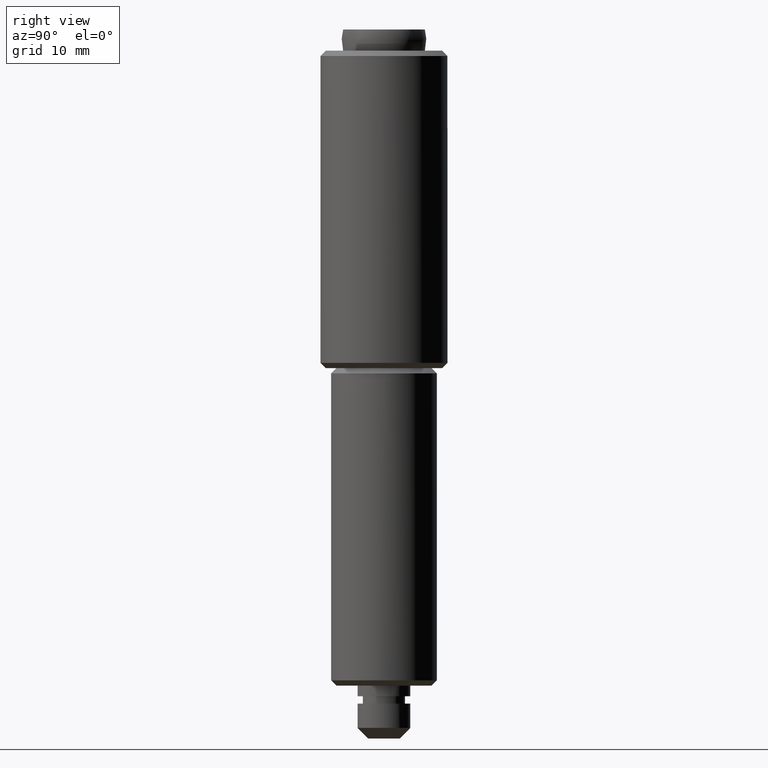
[diagram: clean part render]
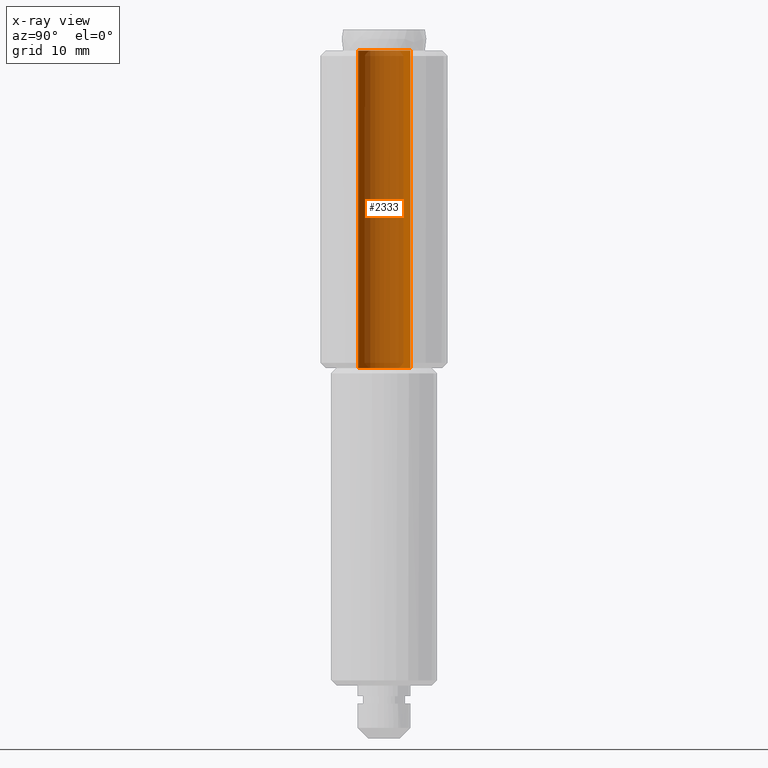
[diagram: x-ray — body ghosted, one internal face saturated and labeled with its STEP entity id]
A machine part, right view, then the same camera in x-ray: the body is ghosted and one INTERNAL B-rep face — a face not visible from any outside direction — is saturated and labeled: STEP entity #2333.
In plain terms, the highlighted face is a freeform B-spline surface patch.
Its self-contained STEP definition (entity closure, byte-faithful):
#2231=CARTESIAN_POINT('',(0.295085586641896,-2.482523815909166,65.750000000000014));
#2232=CARTESIAN_POINT('',(0.224036821594944,-2.490969038621514,65.750000000000000));
#2233=CARTESIAN_POINT('',(0.152621348837143,-2.495336996054667,65.750000000000000));
#2234=CARTESIAN_POINT('',(-2.342715647217524,-2.647958344891809,65.750000000000014));
#2235=CARTESIAN_POINT('',(-2.495336996054667,-0.152621348837143,65.750000000000000));
#2236=CARTESIAN_POINT('',(-2.647958344891809,2.342715647217524,65.750000000000014));
#2237=CARTESIAN_POINT('',(-0.152621348837143,2.495336996054667,65.750000000000000));
#2238=CARTESIAN_POINT('',(0.295085586641896,-2.482523815909166,34.231249999999989));
#2239=CARTESIAN_POINT('',(0.224036821594944,-2.490969038621514,34.231249999999996));
#2240=CARTESIAN_POINT('',(0.152621348837143,-2.495336996054667,34.231249999999989));
#2241=CARTESIAN_POINT('',(-2.342715647217524,-2.647958344891809,34.231249999999989));
#2242=CARTESIAN_POINT('',(-2.495336996054667,-0.152621348837143,34.231249999999989));
#2243=CARTESIAN_POINT('',(-2.647958344891809,2.342715647217524,34.231249999999989));
#2244=CARTESIAN_POINT('',(-0.152621348837143,2.495336996054667,34.231249999999989));
#2252=(BOUNDED_SURFACE()B_SPLINE_SURFACE(2,1,((#2231,#2238),(#2232,#2239),(#2233,#2240),(#2234,#2241),(#2235,#2242),(#2236,#2243),(#2237,#2244)),.UNSPECIFIED.,.F.,.F.,.U.)B_SPLINE_SURFACE_WITH_KNOTS((3,2,2,3),(2,2),(0.0,0.165685424949238,4.307821048680188,8.449956672411137),(0.0,31.518750000000029),.UNSPECIFIED.)GEOMETRIC_REPRESENTATION_ITEM()RATIONAL_B_SPLINE_SURFACE(((0.977505800795127,0.977505800795127),(0.988284271247462,0.988284271247462),(1.0,1.0),(0.707106781186548,0.707106781186548),(1.0,1.0),(0.707106781186548,0.707106781186548),(1.0,1.0)))REPRESENTATION_ITEM('')SURFACE());
#2253=CARTESIAN_POINT('',(0.295085586764168,-2.482523815894632,35.0));
#2254=VERTEX_POINT('',#2253);
#2255=CARTESIAN_POINT('',(-2.500000000000000,0.0,35.0));
#2256=VERTEX_POINT('',#2255);
#2257=CARTESIAN_POINT('',(0.295085586764167,-2.482523815894632,35.0));
#2258=CARTESIAN_POINT('',(0.148060299253339,-2.500000000000000,35.000000000000007));
#2259=CARTESIAN_POINT('',(0.0,-2.500000000000000,35.0));
#2260=CARTESIAN_POINT('',(-2.500000000000000,-2.500000000000000,34.999999999999993));
#2261=CARTESIAN_POINT('',(-2.500000000000000,0.0,35.0));
#2269=(BOUNDED_CURVE()B_SPLINE_CURVE(2,(#2257,#2258,#2259,#2260,#2261),.UNSPECIFIED.,.F.,.U.)B_SPLINE_CURVE_WITH_KNOTS((3,2,3),(0.229562473498996,0.250000000000000,0.500000000000000),.UNSPECIFIED.)CURVE()GEOMETRIC_REPRESENTATION_ITEM()RATIONAL_B_SPLINE_CURVE((0.956026754155255,0.976055948314143,1.0,0.707106781186548,1.0))REPRESENTATION_ITEM(''));
#2270=EDGE_CURVE('',#2254,#2256,#2269,.T.);
#2271=ORIENTED_EDGE('',*,*,#2270,.T.);
#2272=CARTESIAN_POINT('',(-0.152621348974490,2.495336996046267,35.0));
#2273=VERTEX_POINT('',#2272);
#2274=CARTESIAN_POINT('',(-2.500000000000000,0.0,35.0));
#2275=CARTESIAN_POINT('',(-2.500000000000000,2.351765167004858,35.0));
#2276=CARTESIAN_POINT('',(-0.152621348974490,2.495336996046266,34.999999999999993));
#2284=(BOUNDED_CURVE()B_SPLINE_CURVE(2,(#2274,#2275,#2276),.UNSPECIFIED.,.F.,.U.)B_SPLINE_CURVE_WITH_KNOTS((3,3),(0.500000000000000,0.739332962222973),.UNSPECIFIED.)CURVE()GEOMETRIC_REPRESENTATION_ITEM()RATIONAL_B_SPLINE_CURVE((1.0,0.719603993305420,0.976072041632492))REPRESENTATION_ITEM(''));
#2285=EDGE_CURVE('',#2256,#2273,#2284,.T.);
#2286=ORIENTED_EDGE('',*,*,#2285,.T.);
#2287=CARTESIAN_POINT('',(-0.152621348974491,2.495336996046266,64.999999999999986));
#2288=VERTEX_POINT('',#2287);
#2289=CARTESIAN_POINT('',(-0.152621348974491,2.495336996046266,64.999999999999986));
#2290=CARTESIAN_POINT('',(-0.152621348974490,2.495336996046267,35.0));
#2291=QUASI_UNIFORM_CURVE('',1,(#2289,#2290),.UNSPECIFIED.,.F.,.U.);
#2292=EDGE_CURVE('',#2288,#2273,#2291,.T.);
#2293=ORIENTED_EDGE('',*,*,#2292,.F.);
#2294=CARTESIAN_POINT('',(-2.500000000000000,0.0,65.0));
#2295=VERTEX_POINT('',#2294);
#2296=CARTESIAN_POINT('',(-2.500000000000000,0.0,65.0));
#2297=CARTESIAN_POINT('',(-2.500000000000000,2.351765167004858,64.999999999999986));
#2298=CARTESIAN_POINT('',(-0.152621348974491,2.495336996046266,64.999999999999986));
#2306=(BOUNDED_CURVE()B_SPLINE_CURVE(2,(#2296,#2297,#2298),.UNSPECIFIED.,.F.,.U.)B_SPLINE_CURVE_WITH_KNOTS((3,3),(0.500000000000000,0.739332962222973),.UNSPECIFIED.)CURVE()GEOMETRIC_REPRESENTATION_ITEM()RATIONAL_B_SPLINE_CURVE((1.0,0.719603993305420,0.976072041632492))REPRESENTATION_ITEM(''));
#2307=EDGE_CURVE('',#2295,#2288,#2306,.T.);
#2308=ORIENTED_EDGE('',*,*,#2307,.F.);
#2309=CARTESIAN_POINT('',(0.295085586764168,-2.482523815894632,65.0));
#2310=VERTEX_POINT('',#2309);
#2311=CARTESIAN_POINT('',(0.295085586764168,-2.482523815894632,65.0));
#2312=CARTESIAN_POINT('',(0.148060299253339,-2.500000000000000,64.999999999999986));
#2313=CARTESIAN_POINT('',(0.0,-2.500000000000000,65.0));
#2314=CARTESIAN_POINT('',(-2.500000000000000,-2.500000000000000,65.0));
#2315=CARTESIAN_POINT('',(-2.500000000000000,0.0,65.0));
#2323=(BOUNDED_CURVE()B_SPLINE_CURVE(2,(#2311,#2312,#2313,#2314,#2315),.UNSPECIFIED.,.F.,.U.)B_SPLINE_CURVE_WITH_KNOTS((3,2,3),(0.229562473498996,0.250000000000000,0.500000000000000),.UNSPECIFIED.)CURVE()GEOMETRIC_REPRESENTATION_ITEM()RATIONAL_B_SPLINE_CURVE((0.956026754155255,0.976055948314143,1.0,0.707106781186548,1.0))REPRESENTATION_ITEM(''));
#2324=EDGE_CURVE('',#2310,#2295,#2323,.T.);
#2325=ORIENTED_EDGE('',*,*,#2324,.F.);
#2326=CARTESIAN_POINT('',(0.295085586764168,-2.482523815894632,65.0));
#2327=CARTESIAN_POINT('',(0.295085586764168,-2.482523815894632,35.0));
#2328=QUASI_UNIFORM_CURVE('',1,(#2326,#2327),.UNSPECIFIED.,.F.,.U.);
#2329=EDGE_CURVE('',#2310,#2254,#2328,.T.);
#2330=ORIENTED_EDGE('',*,*,#2329,.T.);
#2331=EDGE_LOOP('',(#2271,#2286,#2293,#2308,#2325,#2330));
#2332=FACE_OUTER_BOUND('',#2331,.T.);
#2333=ADVANCED_FACE('',(#2332),#2252,.F.);